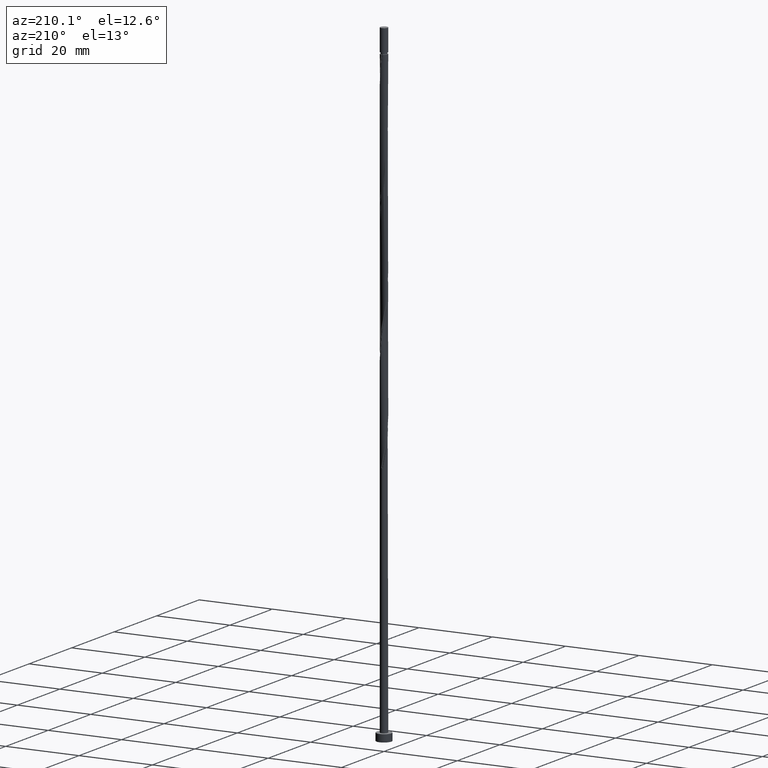
[diagram: clean part render]
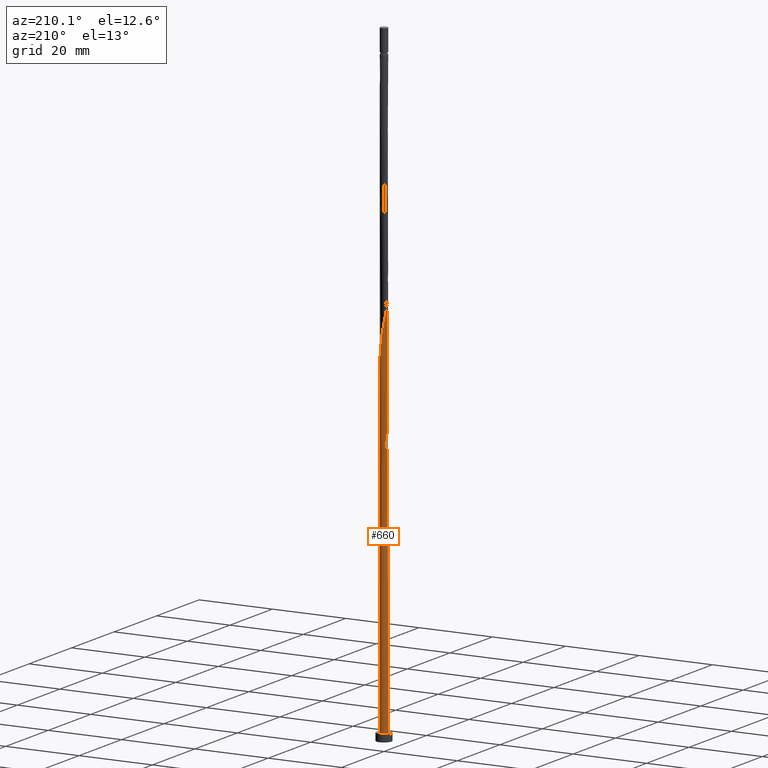
[diagram: same view with one face highlighted and labeled with its STEP entity id]
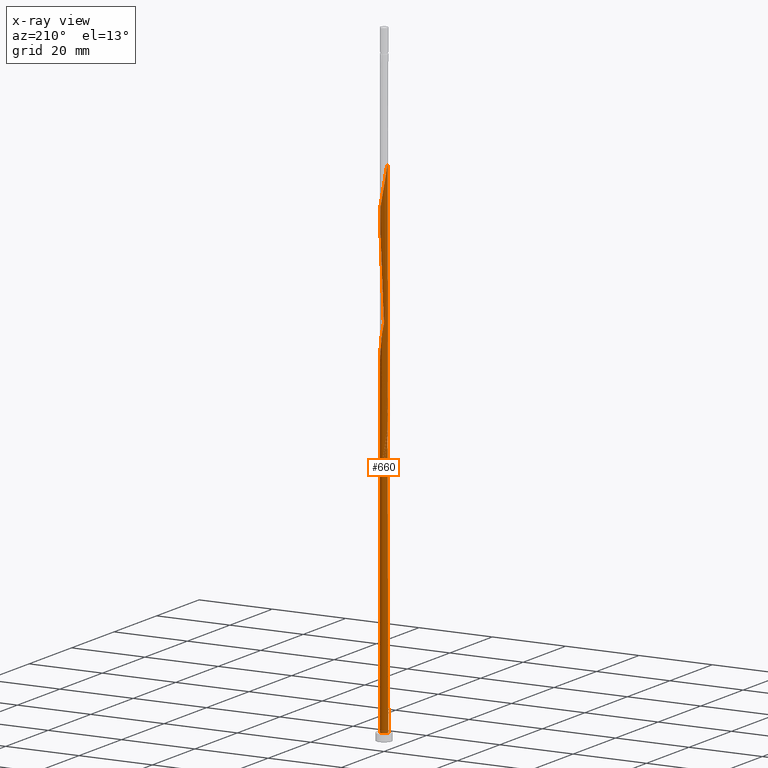
[diagram: x-ray of the same camera — body ghosted, the highlighted face saturated]
A machine part, auxiliary view. The second image highlights one B-rep face of the part: STEP entity #660.
The next image is the same camera in x-ray: the body ghosted, the highlighted face saturated — about 0% of this face is hidden behind the body in this view.
In plain terms, the highlighted cylindrical surface (bore or boss wall) has radius 1 mm, axis along (-0, -0, -1).
Its self-contained STEP definition (entity closure, byte-faithful):
#3 = VERTEX_POINT ( 'NONE', #1237 ) ;
#22 = DIRECTION ( 'NONE',  ( -1.000000000000000000, 0.000000000000000000, 0.000000000000000000 ) ) ;
#37 = CARTESIAN_POINT ( 'NONE',  ( -0.9981116494354764779, 0.06142585173357373307, 73.06985771338652569 ) ) ;
#46 = CARTESIAN_POINT ( 'NONE',  ( -1.000000000000001332, -6.990894227392392190E-16, 140.0618466137320013 ) ) ;
#61 = CARTESIAN_POINT ( 'NONE',  ( -0.7609717405145361990, 0.6620078475813407914, 69.59763549116429715 ) ) ;
#67 = CARTESIAN_POINT ( 'NONE',  ( 0.6620078475813412355, 0.7609717405145354219, 127.9309688244976684 ) ) ;
#77 = CARTESIAN_POINT ( 'NONE',  ( 0.9900247826383185012, -0.1928297432528299216, 122.3754132689420828 ) ) ;
#85 = CARTESIAN_POINT ( 'NONE',  ( 0.5522521727681097836, 0.8336771183575242272, 95.29207993560875423 ) ) ;
#91 = CARTESIAN_POINT ( 'NONE',  ( -0.7492061519980850459, -0.6623368793961459389, 110.5698577133865541 ) ) ;
#99 = CARTESIAN_POINT ( 'NONE',  ( -0.06142585173357380940, -0.9981116494354764779, 114.7365243800532113 ) ) ;
#113 = VERTEX_POINT ( 'NONE', #46 ) ;
#129 = VECTOR ( 'NONE', #186, 1000.000000000000000 ) ;
#135 = CARTESIAN_POINT ( 'NONE',  ( -0.9482036394194152118, 0.3176631206038539879, 138.3476354911643682 ) ) ;
#142 = CARTESIAN_POINT ( 'NONE',  ( -1.000000000000000000, 0.000000000000000000, 172.5099999999999909 ) ) ;
#147 = CARTESIAN_POINT ( 'NONE',  ( -0.1928297432528295052, -0.9900247826383187233, 80.70874660227541142 ) ) ;
#154 = CARTESIAN_POINT ( 'NONE',  ( -1.000000000000000000, 0.000000000000000000, 172.5099999999999909 ) ) ;
#161 = CARTESIAN_POINT ( 'NONE',  ( -0.9800000000000007594, 0.1989974874213302769, 74.45874660227539721 ) ) ;
#172 = CARTESIAN_POINT ( 'NONE',  ( -0.4424964979548783872, 0.9063824962005120334, 69.59763549116432557 ) ) ;
#186 = DIRECTION ( 'NONE',  ( -0.000000000000000000, -0.000000000000000000, -1.000000000000000000 ) ) ;
#189 = CARTESIAN_POINT ( 'NONE',  ( 0.6623368793961459389, -0.7492061519980852680, 85.56985771338651148 ) ) ;
#197 = CARTESIAN_POINT ( 'NONE',  ( 0.8951029700910977382, 0.4458594766673668608, 125.8476354911643398 ) ) ;
#206 = CARTESIAN_POINT ( 'NONE',  ( -0.8951029700910976272, -0.4458594766673671939, 109.1809688244976826 ) ) ;
#217 = CARTESIAN_POINT ( 'NONE',  ( 0.6620078475813412355, 0.7609717405145354219, 94.59763549116428294 ) ) ;
#225 = CARTESIAN_POINT ( 'NONE',  ( -0.9900247826383187233, 0.1928297432528294497, 105.7087466022754114 ) ) ;
#230 = CARTESIAN_POINT ( 'NONE',  ( 0.9800000000000002043, 0.1989974874213300826, 124.4587466022754541 ) ) ;
#235 = CARTESIAN_POINT ( 'NONE',  ( -1.000000000000001332, -1.031811126609786336E-15, 73.39517994706531567 ) ) ;
#253 = EDGE_CURVE ( 'NONE', #872, #3, #1620, .T. ) ;
#264 = VECTOR ( 'NONE', #1510, 1000.000000000000000 ) ;
#267 = ORIENTED_EDGE ( 'NONE', *, *, #1288, .F. ) ;
#272 = EDGE_CURVE ( 'NONE', #816, #1539, #522, .T. ) ;
#295 = VERTEX_POINT ( 'NONE', #1303 ) ;
#311 = EDGE_CURVE ( 'NONE', #295, #798, #700, .T. ) ;
#312 = CARTESIAN_POINT ( 'NONE',  ( -1.000000000000001776, 1.342102153814917990E-15, 75.52231325748550717 ) ) ;
#318 = CARTESIAN_POINT ( 'NONE',  ( -0.06142585173357380940, -0.9981116494354764779, 81.40319104671988271 ) ) ;
#323 = DIRECTION ( 'NONE',  ( -1.000000000000000000, 0.000000000000000000, 0.000000000000000000 ) ) ;
#324 = CARTESIAN_POINT ( 'NONE',  ( 0.9063824962005113672, -0.4424964979548786648, 120.9865243800531687 ) ) ;
#336 = CARTESIAN_POINT ( 'NONE',  ( -0.4458594766673673049, 0.8951029700910975162, 100.8476354911643114 ) ) ;
#342 = CARTESIAN_POINT ( 'NONE',  ( -0.06997803978568122030, 1.006198516232634566, 132.0976354911643114 ) ) ;
#347 = CARTESIAN_POINT ( 'NONE',  ( 0.06142585173357440614, 0.9981116494354764779, 98.06985771338653990 ) ) ;
#359 = CARTESIAN_POINT ( 'NONE',  ( 0.3280169350569779874, -0.9538014837673659541, 116.8198577133865115 ) ) ;
#386 = EDGE_CURVE ( 'NONE', #3, #872, #887, .T. ) ;
#406 = AXIS2_PLACEMENT_3D ( 'NONE', #1560, #808, #1313 ) ;
#419 = CARTESIAN_POINT ( 'NONE',  ( -0.4424964979548786648, -0.9063824962005115893, 79.31985771338651148 ) ) ;
#421 = CARTESIAN_POINT ( 'NONE',  ( -0.3176631206038537658, 0.9482036394194154338, 68.90319104671986850 ) ) ;
#443 = CARTESIAN_POINT ( 'NONE',  ( 0.000000000000000000, 0.000000000000000000, 172.5099999999999909 ) ) ;
#452 = CARTESIAN_POINT ( 'NONE',  ( -0.7492061519980850459, 0.6623368793961466050, 71.68096882449768259 ) ) ;
#459 = CARTESIAN_POINT ( 'NONE',  ( -0.8336771183575244493, 0.5522521727681094506, 70.29207993560875423 ) ) ;
#465 = CARTESIAN_POINT ( 'NONE',  ( 0.5522521727681097836, 0.8336771183575242272, 128.6254132689421112 ) ) ;
#475 = CARTESIAN_POINT ( 'NONE',  ( 0.8364044564148299665, 0.5637020182777559008, 126.5420799356087542 ) ) ;
#480 = CARTESIAN_POINT ( 'NONE',  ( 0.3176631206038545430, 0.9482036394194151008, 96.68096882449762575 ) ) ;
#486 = CARTESIAN_POINT ( 'NONE',  ( -0.5637020182777564559, 0.8364044564148294114, 101.5420799356087684 ) ) ;
#495 = CARTESIAN_POINT ( 'NONE',  ( -0.5522521727681096726, -0.8336771183575242272, 111.9587466022754541 ) ) ;
#522 =( BOUNDED_CURVE ( )  B_SPLINE_CURVE ( 2, ( #312, #819, #161, #825, #1046, #1528, #452, #832, #1567, #172, #421, #694, #1297, #1080, #957 ),
 .UNSPECIFIED., .F., .T. ) 
 B_SPLINE_CURVE_WITH_KNOTS ( ( 3, 2, 2, 2, 2, 2, 2, 3 ),
 ( 0.9295317669814461281, 0.9375000000000000000, 0.9479166666666666297, 0.9583333333333333703, 0.9687500000000000000, 0.9791666666666666297, 0.9895833333333333703, 1.000000000000000000 ),
 .UNSPECIFIED. ) 
 CURVE ( )  GEOMETRIC_REPRESENTATION_ITEM ( )  RATIONAL_B_SPLINE_CURVE ( ( 0.9062941362546341750, 0.9031415850403381462, 0.9090909090909138346, 0.9013135103398322023, 0.9090909090909138346, 0.9013135103398322023, 0.9090909090909138346, 0.9013135103398322023, 0.9090909090909138346, 0.9013135103398322023, 0.9090909090909138346, 0.9013135103398322023, 0.9090909090909138346, 0.9013135103398322023, 0.9090909090909138346 ) ) 
 REPRESENTATION_ITEM ( '' )  );
#525 = CARTESIAN_POINT ( 'NONE',  ( -0.9063824962005117003, 0.4424964979548783872, 137.6531910467198543 ) ) ;
#549 = CARTESIAN_POINT ( 'NONE',  ( 0.8336771183575240052, -0.5522521727681098946, 86.95874660227541142 ) ) ;
#568 = CARTESIAN_POINT ( 'NONE',  ( -1.000000000000001332, -1.031811126609786336E-15, 73.39517994706530146 ) ) ;
#581 = CARTESIAN_POINT ( 'NONE',  ( 0.000000000000000000, 0.000000000000000000, 66.12541326894206861 ) ) ;
#584 = CARTESIAN_POINT ( 'NONE',  ( -0.9063824962005117003, 0.4424964979548783872, 70.98652438005321130 ) ) ;
#590 = CARTESIAN_POINT ( 'NONE',  ( -0.9482036394194152118, 0.3176631206038539879, 105.0143021578309401 ) ) ;
#599 = ORIENTED_EDGE ( 'NONE', *, *, #311, .F. ) ;
#600 = CARTESIAN_POINT ( 'NONE',  ( 0.9981116494354764779, -0.06142585173357436451, 123.0698577133865683 ) ) ;
#603 = CARTESIAN_POINT ( 'NONE',  ( 0.000000000000000000, 0.000000000000000000, 2.000000000000000000 ) ) ;
#609 = CARTESIAN_POINT ( 'NONE',  ( -0.1928297432528295052, -0.9900247826383187233, 114.0420799356087400 ) ) ;
#618 = CARTESIAN_POINT ( 'NONE',  ( 0.9900247826383185012, -0.1928297432528299216, 89.04207993560875423 ) ) ;
#625 = CARTESIAN_POINT ( 'NONE',  ( 0.9800000000000002043, 0.1989974874213300826, 91.12541326894209703 ) ) ;
#631 = CARTESIAN_POINT ( 'NONE',  ( -1.000000000000001110, 0.03074195165767453983, 139.8986829257038380 ) ) ;
#660 = ADVANCED_FACE ( 'NONE', ( #1557 ), #1410, .T. ) ;
#671 = CARTESIAN_POINT ( 'NONE',  ( 0.1989974874213301104, -0.9800000000000002043, 82.79207993560874002 ) ) ;
#685 = CARTESIAN_POINT ( 'NONE',  ( -0.9482036394194152118, 0.3176631206038539879, 71.68096882449763996 ) ) ;
#694 = CARTESIAN_POINT ( 'NONE',  ( -0.1928297432528294497, 0.9900247826383190564, 68.20874660227543984 ) ) ;
#700 =( BOUNDED_CURVE ( )  B_SPLINE_CURVE ( 2, ( #710, #927, #1399, #1277, #1197, #61, #459, #584, #685, #1169, #37, #1055, #980 ),
 .UNSPECIFIED., .F., .T. ) 
 B_SPLINE_CURVE_WITH_KNOTS ( ( 3, 2, 2, 2, 2, 2, 3 ),
 ( 0.000000000000000000, 0.01041666666666662966, 0.02083333333333337034, 0.03125000000000000000, 0.04166666666666662966, 0.05208333333333337034, 0.05453176698144596157 ),
 .UNSPECIFIED. ) 
 CURVE ( )  GEOMETRIC_REPRESENTATION_ITEM ( )  RATIONAL_B_SPLINE_CURVE ( ( 0.9090909090909236046, 0.9013135103398420833, 0.9090909090909236046, 0.9013135103398420833, 0.9090909090909236046, 0.9013135103398420833, 0.9090909090909236046, 0.9013135103398420833, 0.9090909090909236046, 0.9013135103398420833, 0.9090909090909236046, 0.9072628343904175496, 0.9062941362546441670 ) ) 
 REPRESENTATION_ITEM ( '' )  );
#706 = EDGE_CURVE ( 'NONE', #798, #113, #1521, .T. ) ;
#709 = CARTESIAN_POINT ( 'NONE',  ( 0.7609717405145360880, -0.6620078475813410135, 86.26430215783095434 ) ) ;
#710 = CARTESIAN_POINT ( 'NONE',  ( -0.1989974874213300826, 0.9800000000000002043, 66.12541326894208282 ) ) ;
#715 = DIRECTION ( 'NONE',  ( 0.000000000000000000, 0.000000000000000000, -1.000000000000000000 ) ) ;
#716 = CARTESIAN_POINT ( 'NONE',  ( 0.7492061519980856010, 0.6623368793961457168, 93.90319104671985428 ) ) ;
#724 = CARTESIAN_POINT ( 'NONE',  ( -0.06997803978568122030, 1.006198516232634566, 98.76430215783095434 ) ) ;
#732 = CARTESIAN_POINT ( 'NONE',  ( 0.1989974874213301104, -0.9800000000000002043, 116.1254132689421255 ) ) ;
#741 = CARTESIAN_POINT ( 'NONE',  ( -0.6623368793961460499, 0.7492061519980850459, 102.2365243800531971 ) ) ;
#747 = CARTESIAN_POINT ( 'NONE',  ( -0.8336771183575244493, 0.5522521727681094506, 103.6254132689421112 ) ) ;
#776 = CARTESIAN_POINT ( 'NONE',  ( -0.7609717405145361990, 0.6620078475813407914, 136.2643021578309686 ) ) ;
#798 = VERTEX_POINT ( 'NONE', #235 ) ;
#807 = CARTESIAN_POINT ( 'NONE',  ( 0.3280169350569779874, -0.9538014837673659541, 83.48652438005318288 ) ) ;
#808 = DIRECTION ( 'NONE',  ( 0.000000000000000000, 0.000000000000000000, 1.000000000000000000 ) ) ;
#813 = AXIS2_PLACEMENT_3D ( 'NONE', #581, #715, #323 ) ;
#816 = VERTEX_POINT ( 'NONE', #1239 ) ;
#817 = CARTESIAN_POINT ( 'NONE',  ( -0.8364044564148296335, -0.5637020182777562338, 76.54207993560875423 ) ) ;
#819 = CARTESIAN_POINT ( 'NONE',  ( -1.000000000000001776, 0.1005037815259252482, 74.98888688829622140 ) ) ;
#825 = CARTESIAN_POINT ( 'NONE',  ( -0.9538014837673658430, 0.3280169350569784315, 73.76430215783096855 ) ) ;
#831 = CARTESIAN_POINT ( 'NONE',  ( 0.4458594766673669163, -0.8951029700910977382, 84.18096882449763996 ) ) ;
#832 = CARTESIAN_POINT ( 'NONE',  ( -0.6620078475813406804, 0.7609717405145367541, 70.98652438005318288 ) ) ;
#840 = CARTESIAN_POINT ( 'NONE',  ( 0.9538014837673659541, 0.3280169350569778763, 125.1531910467198543 ) ) ;
#849 = CARTESIAN_POINT ( 'NONE',  ( 0.9538014837673659541, 0.3280169350569778763, 91.81985771338653990 ) ) ;
#855 = CARTESIAN_POINT ( 'NONE',  ( -0.1989974874213300271, 0.9800000000000002043, 132.7920799356087969 ) ) ;
#863 = CARTESIAN_POINT ( 'NONE',  ( 0.8364044564148299665, 0.5637020182777559008, 93.20874660227541142 ) ) ;
#869 = CARTESIAN_POINT ( 'NONE',  ( 0.4458594766673669163, -0.8951029700910977382, 117.5143021578309970 ) ) ;
#872 = VERTEX_POINT ( 'NONE', #1496 ) ;
#876 = CARTESIAN_POINT ( 'NONE',  ( -0.4458594766673673049, 0.8951029700910975162, 134.1809688244976542 ) ) ;
#887 = CIRCLE ( 'NONE', #1549, 1.000000000000000000 ) ;
#892 = CARTESIAN_POINT ( 'NONE',  ( -0.9900247826383187233, 0.1928297432528294497, 139.0420799356087116 ) ) ;
#921 = CARTESIAN_POINT ( 'NONE',  ( 0.1989974874213306377, 0.9800000000000006484, 66.12541326894208282 ) ) ;
#925 = CARTESIAN_POINT ( 'NONE',  ( 0.9063824962005113672, -0.4424964979548786648, 87.65319104671986850 ) ) ;
#927 = CARTESIAN_POINT ( 'NONE',  ( -0.3280169350569781539, 0.9538014837673656210, 66.81985771338651148 ) ) ;
#934 = CARTESIAN_POINT ( 'NONE',  ( -0.9800000000000002043, -0.1989974874213301659, 74.45874660227541142 ) ) ;
#949 = CARTESIAN_POINT ( 'NONE',  ( -0.9538014837673659541, -0.3280169350569779874, 75.15319104671986850 ) ) ;
#957 = CARTESIAN_POINT ( 'NONE',  ( 0.1989974874213306377, 0.9800000000000007594, 66.12541326894208282 ) ) ;
#964 = CARTESIAN_POINT ( 'NONE',  ( 0.4424964979548787758, 0.9063824962005113672, 129.3198577133865115 ) ) ;
#971 = CARTESIAN_POINT ( 'NONE',  ( 0.1928297432528299771, 0.9900247826383185012, 97.37541326894205440 ) ) ;
#977 = CARTESIAN_POINT ( 'NONE',  ( 0.4424964979548787758, 0.9063824962005113672, 95.98652438005316867 ) ) ;
#980 = CARTESIAN_POINT ( 'NONE',  ( -1.000000000000001332, -1.031811126609786336E-15, 73.39517994706530146 ) ) ;
#984 = CARTESIAN_POINT ( 'NONE',  ( -0.4424964979548786648, -0.9063824962005115893, 112.6531910467198543 ) ) ;
#993 = CARTESIAN_POINT ( 'NONE',  ( 0.8336771183575240052, -0.5522521727681098946, 120.2920799356087969 ) ) ;
#1011 = ORIENTED_EDGE ( 'NONE', *, *, #706, .F. ) ;
#1020 = CARTESIAN_POINT ( 'NONE',  ( -0.9981116494354764779, 0.06142585173357373307, 139.7365243800532539 ) ) ;
#1046 = CARTESIAN_POINT ( 'NONE',  ( -0.8951029700910976272, 0.4458594766673675824, 73.06985771338652569 ) ) ;
#1053 = ORIENTED_EDGE ( 'NONE', *, *, #253, .T. ) ;
#1055 = CARTESIAN_POINT ( 'NONE',  ( -1.000000000000001332, 0.03074195165767212856, 73.23201625903718082 ) ) ;
#1063 = CARTESIAN_POINT ( 'NONE',  ( -0.3176631206038542654, -0.9482036394194152118, 80.01430215783096855 ) ) ;
#1080 = CARTESIAN_POINT ( 'NONE',  ( 0.06997803978568227501, 1.006198516232635010, 66.81985771338653990 ) ) ;
#1085 = CARTESIAN_POINT ( 'NONE',  ( 1.006198516232634566, 0.06997803978568133132, 123.7643021578309828 ) ) ;
#1094 = CARTESIAN_POINT ( 'NONE',  ( -0.3280169350569781539, 0.9538014837673656210, 100.1531910467198685 ) ) ;
#1101 = CARTESIAN_POINT ( 'NONE',  ( 0.3176631206038545430, 0.9482036394194151008, 130.0143021578309970 ) ) ;
#1107 = CARTESIAN_POINT ( 'NONE',  ( 1.006198516232634566, 0.06997803978568133132, 90.43096882449762575 ) ) ;
#1111 = CARTESIAN_POINT ( 'NONE',  ( 0.6623368793961459389, -0.7492061519980852680, 118.9031910467198827 ) ) ;
#1128 = CARTESIAN_POINT ( 'NONE',  ( -0.8336771183575244493, 0.5522521727681094506, 136.9587466022754256 ) ) ;
#1134 = CARTESIAN_POINT ( 'NONE',  ( -0.5637020182777564559, 0.8364044564148294114, 134.8754132689420544 ) ) ;
#1141 = EDGE_LOOP ( 'NONE', ( #267, #1011, #1357, #1053, #1266, #1628, #599, #1149, #1492 ) ) ;
#1149 = ORIENTED_EDGE ( 'NONE', *, *, #1226, .T. ) ;
#1166 = DIRECTION ( 'NONE',  ( -0.000000000000000000, -0.000000000000000000, -1.000000000000000000 ) ) ;
#1169 = CARTESIAN_POINT ( 'NONE',  ( -0.9900247826383187233, 0.1928297432528294497, 72.37541326894211124 ) ) ;
#1176 = CARTESIAN_POINT ( 'NONE',  ( -0.8951029700910976272, -0.4458594766673671939, 75.84763549116431136 ) ) ;
#1197 = CARTESIAN_POINT ( 'NONE',  ( -0.6623368793961460499, 0.7492061519980850459, 68.90319104671986850 ) ) ;
#1203 = CARTESIAN_POINT ( 'NONE',  ( -0.1989974874213300271, 0.9800000000000002043, 99.45874660227543984 ) ) ;
#1208 = CARTESIAN_POINT ( 'NONE',  ( 0.7609717405145360880, -0.6620078475813410135, 119.5976354911642972 ) ) ;
#1215 = CARTESIAN_POINT ( 'NONE',  ( -1.006198516232634788, -0.06997803978568212235, 107.0976354911642687 ) ) ;
#1222 = CARTESIAN_POINT ( 'NONE',  ( -0.8364044564148296335, -0.5637020182777562338, 109.8754132689420970 ) ) ;
#1226 = EDGE_CURVE ( 'NONE', #295, #1539, #1490, .T. ) ;
#1227 = CARTESIAN_POINT ( 'NONE',  ( -0.9800000000000002043, -0.1989974874213301659, 107.7920799356087684 ) ) ;
#1237 = CARTESIAN_POINT ( 'NONE',  ( 1.000000000000000000, 0.000000000000000000, 2.000000000000000000 ) ) ;
#1239 = CARTESIAN_POINT ( 'NONE',  ( -1.000000000000001776, 1.342102153814917990E-15, 75.52231325748550717 ) ) ;
#1253 = AXIS2_PLACEMENT_3D ( 'NONE', #443, #1166, #22 ) ;
#1266 = ORIENTED_EDGE ( 'NONE', *, *, #386, .T. ) ;
#1275 = CARTESIAN_POINT ( 'NONE',  ( 0.9482036394194152118, -0.3176631206038544319, 88.34763549116431136 ) ) ;
#1277 = CARTESIAN_POINT ( 'NONE',  ( -0.5637020182777564559, 0.8364044564148294114, 68.20874660227542563 ) ) ;
#1283 = LINE ( 'NONE', #154, #264 ) ;
#1286 = CARTESIAN_POINT ( 'NONE',  ( 0.06997803978568188643, -1.006198516232634788, 82.09763549116429715 ) ) ;
#1288 = EDGE_CURVE ( 'NONE', #113, #816, #1283, .T. ) ;
#1297 = CARTESIAN_POINT ( 'NONE',  ( -0.06142585173357356654, 0.9981116494354770330, 67.51430215783095434 ) ) ;
#1302 = CARTESIAN_POINT ( 'NONE',  ( 0.5637020182777559008, -0.8364044564148299665, 84.87541326894206861 ) ) ;
#1303 = CARTESIAN_POINT ( 'NONE',  ( -0.1989974874213300826, 0.9800000000000002043, 66.12541326894208282 ) ) ;
#1311 = CARTESIAN_POINT ( 'NONE',  ( -0.9063824962005117003, 0.4424964979548783872, 104.3198577133865257 ) ) ;
#1313 = DIRECTION ( 'NONE',  ( 1.000000000000000000, 0.000000000000000000, 0.000000000000000000 ) ) ;
#1319 = CARTESIAN_POINT ( 'NONE',  ( -0.9981116494354764779, 0.06142585173357373307, 106.4031910467198969 ) ) ;
#1325 = CARTESIAN_POINT ( 'NONE',  ( 0.7492061519980856010, 0.6623368793961457168, 127.2365243800532255 ) ) ;
#1333 = CARTESIAN_POINT ( 'NONE',  ( -0.9538014837673659541, -0.3280169350569779874, 108.4865243800531829 ) ) ;
#1338 = CARTESIAN_POINT ( 'NONE',  ( 0.5637020182777559008, -0.8364044564148299665, 118.2087466022754114 ) ) ;
#1344 = CARTESIAN_POINT ( 'NONE',  ( -1.000000000000001332, -6.990894227392392190E-16, 140.0618466137320013 ) ) ;
#1357 = ORIENTED_EDGE ( 'NONE', *, *, #1407, .T. ) ;
#1372 = CARTESIAN_POINT ( 'NONE',  ( -0.6623368793961460499, 0.7492061519980850459, 135.5698577133865683 ) ) ;
#1384 = LINE ( 'NONE', #142, #129 ) ;
#1399 = CARTESIAN_POINT ( 'NONE',  ( -0.4458594766673673049, 0.8951029700910975162, 67.51430215783096855 ) ) ;
#1407 = EDGE_CURVE ( 'NONE', #798, #872, #1384, .T. ) ;
#1410 = CYLINDRICAL_SURFACE ( 'NONE', #1253, 1.000000000000000000 ) ;
#1429 = CARTESIAN_POINT ( 'NONE',  ( -0.7492061519980850459, -0.6623368793961459389, 77.23652438005319709 ) ) ;
#1438 = CARTESIAN_POINT ( 'NONE',  ( -1.000000000000001776, -0.1005037815259228334, 73.92860631625461565 ) ) ;
#1446 = CARTESIAN_POINT ( 'NONE',  ( 0.06142585173357440614, 0.9981116494354764779, 131.4031910467198827 ) ) ;
#1451 = CARTESIAN_POINT ( 'NONE',  ( 0.1928297432528299771, 0.9900247826383185012, 130.7087466022753972 ) ) ;
#1452 = DIRECTION ( 'NONE',  ( 1.000000000000000000, 0.000000000000000000, 0.000000000000000000 ) ) ;
#1458 = CARTESIAN_POINT ( 'NONE',  ( 0.9981116494354764779, -0.06142585173357436451, 89.73652438005321130 ) ) ;
#1460 = DIRECTION ( 'NONE',  ( 0.000000000000000000, 0.000000000000000000, 1.000000000000000000 ) ) ;
#1467 = CARTESIAN_POINT ( 'NONE',  ( -0.3176631206038542654, -0.9482036394194152118, 113.3476354911643256 ) ) ;
#1490 = CIRCLE ( 'NONE', #813, 1.000000000000000000 ) ;
#1492 = ORIENTED_EDGE ( 'NONE', *, *, #272, .F. ) ;
#1496 = CARTESIAN_POINT ( 'NONE',  ( -1.000000000000000000, 0.000000000000000000, 2.000000000000000000 ) ) ;
#1501 = CARTESIAN_POINT ( 'NONE',  ( -0.3280169350569781539, 0.9538014837673656210, 133.4865243800531971 ) ) ;
#1510 = DIRECTION ( 'NONE',  ( -0.000000000000000000, -0.000000000000000000, -1.000000000000000000 ) ) ;
#1521 =( BOUNDED_CURVE ( )  B_SPLINE_CURVE ( 2, ( #568, #1438, #934, #949, #1176, #817, #1429, #1565, #1536, #419, #1063, #147, #318, #1286, #671, #807, #831, #1302, #189, #709, #549, #925, #1275, #618, #1458, #1107, #625, #849, #1587, #863, #716, #217, #85, #977, #480, #971, #347, #724, #1203, #1094, #336, #486, #741, #1574, #747, #1311, #590, #225, #1319, #1215, #1227, #1333, #206, #1222, #91, #1593, #495, #984, #1467, #609, #99, #1600, #732, #359, #869, #1338, #1111, #1208, #993, #324, #1580, #77, #600, #1085, #230, #840, #197, #475, #1325, #67, #465, #964, #1101, #1451, #1446, #342, #855, #1501, #876, #1134, #1372, #776, #1128, #525, #135, #892, #1020, #631, #1344 ),
 .UNSPECIFIED., .F., .T. ) 
 B_SPLINE_CURVE_WITH_KNOTS ( ( 3, 2, 2, 2, 2, 2, 2, 2, 2, 2, 2, 2, 2, 2, 2, 2, 2, 2, 2, 2, 2, 2, 2, 2, 2, 2, 2, 2, 2, 2, 2, 2, 2, 2, 2, 2, 2, 2, 2, 2, 2, 2, 2, 2, 2, 2, 2, 2, 2, 3 ),
 ( 0.05453176698144596157, 0.06250000000000000000, 0.07291666666666662966, 0.08333333333333337034, 0.09375000000000000000, 0.1041666666666666297, 0.1145833333333333703, 0.1250000000000000000, 0.1354166666666666297, 0.1458333333333333703, 0.1562500000000000000, 0.1666666666666666297, 0.1770833333333333703, 0.1875000000000000000, 0.1979166666666666297, 0.2083333333333333703, 0.2187500000000000000, 0.2291666666666666297, 0.2395833333333333703, 0.2500000000000000000, 0.2604166666666666297, 0.2708333333333333703, 0.2812500000000000000, 0.2916666666666666297, 0.3020833333333333703, 0.3125000000000000000, 0.3229166666666666297, 0.3333333333333333703, 0.3437500000000000000, 0.3541666666666666297, 0.3645833333333333703, 0.3750000000000000000, 0.3854166666666666297, 0.3958333333333333703, 0.4062500000000000000, 0.4166666666666666297, 0.4270833333333333703, 0.4375000000000000000, 0.4479166666666666297, 0.4583333333333333703, 0.4687500000000000000, 0.4791666666666666297, 0.4895833333333333703, 0.5000000000000000000, 0.5104166666666667407, 0.5208333333333332593, 0.5312500000000000000, 0.5416666666666667407, 0.5520833333333332593, 0.5545317669814456840 ),
 .UNSPECIFIED. ) 
 CURVE ( )  GEOMETRIC_REPRESENTATION_ITEM ( )  RATIONAL_B_SPLINE_CURVE ( ( 0.9062941362546441670, 0.9031415850403479162, 0.9090909090909236046, 0.9013135103398420833, 0.9090909090909236046, 0.9013135103398420833, 0.9090909090909236046, 0.9013135103398420833, 0.9090909090909236046, 0.9013135103398420833, 0.9090909090909236046, 0.9013135103398420833, 0.9090909090909236046, 0.9013135103398420833, 0.9090909090909236046, 0.9013135103398420833, 0.9090909090909236046, 0.9013135103398420833, 0.9090909090909236046, 0.9013135103398420833, 0.9090909090909236046, 0.9013135103398420833, 0.9090909090909236046, 0.9013135103398420833, 0.9090909090909236046, 0.9013135103398420833, 0.9090909090909236046, 0.9013135103398420833, 0.9090909090909236046, 0.9013135103398420833, 0.9090909090909236046, 0.9013135103398420833, 0.9090909090909236046, 0.9013135103398420833, 0.9090909090909236046, 0.9013135103398420833, 0.9090909090909236046, 0.9013135103398420833, 0.9090909090909236046, 0.9013135103398420833, 0.9090909090909236046, 0.9013135103398420833, 0.9090909090909236046, 0.9013135103398420833, 0.9090909090909236046, 0.9013135103398420833, 0.9090909090909236046, 0.9013135103398420833, 0.9090909090909236046, 0.9013135103398420833, 0.9090909090909236046, 0.9013135103398420833, 0.9090909090909236046, 0.9013135103398420833, 0.9090909090909236046, 0.9013135103398420833, 0.9090909090909236046, 0.9013135103398420833, 0.9090909090909236046, 0.9013135103398420833, 0.9090909090909236046, 0.9013135103398420833, 0.9090909090909236046, 0.9013135103398420833, 0.9090909090909236046, 0.9013135103398420833, 0.9090909090909236046, 0.9013135103398420833, 0.9090909090909236046, 0.9013135103398420833, 0.9090909090909236046, 0.9013135103398420833, 0.9090909090909236046, 0.9013135103398420833, 0.9090909090909236046, 0.9013135103398420833, 0.9090909090909236046, 0.9013135103398420833, 0.9090909090909236046, 0.9013135103398420833, 0.9090909090909236046, 0.9013135103398420833, 0.9090909090909236046, 0.9013135103398420833, 0.9090909090909236046, 0.9013135103398420833, 0.9090909090909236046, 0.9013135103398420833, 0.9090909090909236046, 0.9013135103398420833, 0.9090909090909236046, 0.9013135103398420833, 0.9090909090909236046, 0.9013135103398420833, 0.9090909090909236046, 0.9013135103398420833, 0.9090909090909236046, 0.9072628343904177717, 0.9062941362546443891 ) ) 
 REPRESENTATION_ITEM ( '' )  );
#1528 = CARTESIAN_POINT ( 'NONE',  ( -0.8364044564148297445, 0.5637020182777565669, 72.37541326894209703 ) ) ;
#1536 = CARTESIAN_POINT ( 'NONE',  ( -0.5522521727681096726, -0.8336771183575242272, 78.62541326894206861 ) ) ;
#1539 = VERTEX_POINT ( 'NONE', #921 ) ;
#1549 = AXIS2_PLACEMENT_3D ( 'NONE', #603, #1460, #1452 ) ;
#1557 = FACE_OUTER_BOUND ( 'NONE', #1141, .T. ) ;
#1560 = CARTESIAN_POINT ( 'NONE',  ( 0.000000000000000000, 0.000000000000000000, 2.000000000000000000 ) ) ;
#1565 = CARTESIAN_POINT ( 'NONE',  ( -0.6620078475813410135, -0.7609717405145360880, 77.93096882449759732 ) ) ;
#1567 = CARTESIAN_POINT ( 'NONE',  ( -0.5522521727681096726, 0.8336771183575242272, 70.29207993560875423 ) ) ;
#1574 = CARTESIAN_POINT ( 'NONE',  ( -0.7609717405145361990, 0.6620078475813407914, 102.9309688244976400 ) ) ;
#1580 = CARTESIAN_POINT ( 'NONE',  ( 0.9482036394194152118, -0.3176631206038544319, 121.6809688244976400 ) ) ;
#1587 = CARTESIAN_POINT ( 'NONE',  ( 0.8951029700910977382, 0.4458594766673668608, 92.51430215783098276 ) ) ;
#1593 = CARTESIAN_POINT ( 'NONE',  ( -0.6620078475813410135, -0.7609717405145360880, 111.2643021578309970 ) ) ;
#1600 = CARTESIAN_POINT ( 'NONE',  ( 0.06997803978568188643, -1.006198516232634788, 115.4309688244976257 ) ) ;
#1620 = CIRCLE ( 'NONE', #406, 1.000000000000000000 ) ;
#1628 = ORIENTED_EDGE ( 'NONE', *, *, #1407, .F. ) ;